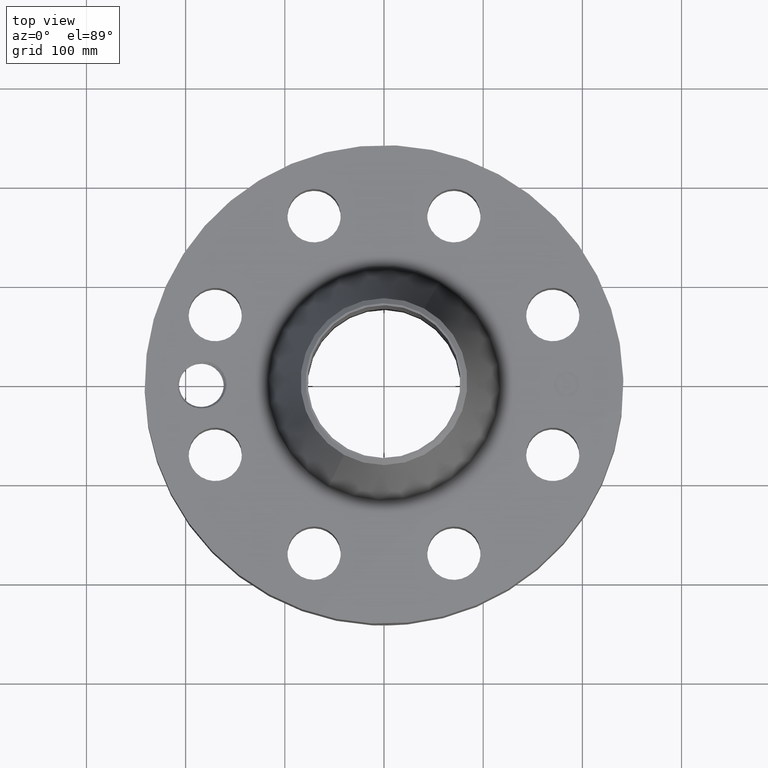
[diagram: clean part render]
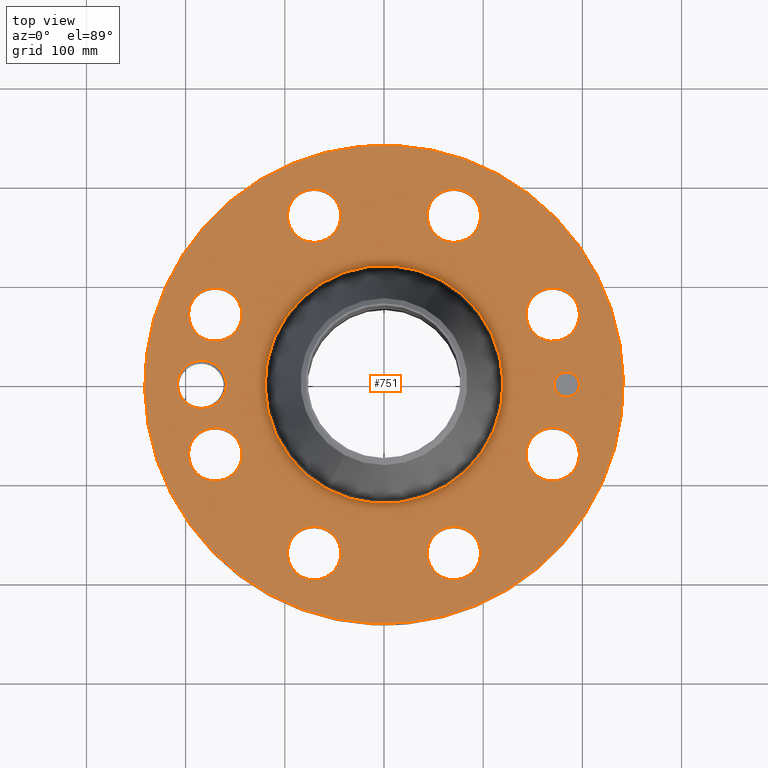
[diagram: same view with one face highlighted and labeled with its STEP entity id]
A machine part, top view. The second image highlights one B-rep face of the part: STEP entity #751.
In plain terms, the highlighted planar face has unit normal (0, 0, -1).
Its self-contained STEP definition (entity closure, byte-faithful):
#58=AXIS2_PLACEMENT_3D('Circle Axis2P3D',#56,#57,$) ;
#407=AXIS2_PLACEMENT_3D('Circle Axis2P3D',#405,#406,$) ;
#507=AXIS2_PLACEMENT_3D('Plane Axis2P3D',#504,#505,#506) ;
#555=AXIS2_PLACEMENT_3D('Circle Axis2P3D',#553,#554,$) ;
#562=AXIS2_PLACEMENT_3D('Circle Axis2P3D',#560,#561,$) ;
#573=AXIS2_PLACEMENT_3D('Circle Axis2P3D',#571,#572,$) ;
#582=AXIS2_PLACEMENT_3D('Circle Axis2P3D',#580,#581,$) ;
#591=AXIS2_PLACEMENT_3D('Circle Axis2P3D',#589,#590,$) ;
#600=AXIS2_PLACEMENT_3D('Circle Axis2P3D',#598,#599,$) ;
#609=AXIS2_PLACEMENT_3D('Circle Axis2P3D',#607,#608,$) ;
#618=AXIS2_PLACEMENT_3D('Circle Axis2P3D',#616,#617,$) ;
#627=AXIS2_PLACEMENT_3D('Circle Axis2P3D',#625,#626,$) ;
#636=AXIS2_PLACEMENT_3D('Circle Axis2P3D',#634,#635,$) ;
#645=AXIS2_PLACEMENT_3D('Circle Axis2P3D',#643,#644,$) ;
#654=AXIS2_PLACEMENT_3D('Circle Axis2P3D',#652,#653,$) ;
#663=AXIS2_PLACEMENT_3D('Circle Axis2P3D',#661,#662,$) ;
#672=AXIS2_PLACEMENT_3D('Circle Axis2P3D',#670,#671,$) ;
#681=AXIS2_PLACEMENT_3D('Circle Axis2P3D',#679,#680,$) ;
#690=AXIS2_PLACEMENT_3D('Circle Axis2P3D',#688,#689,$) ;
#699=AXIS2_PLACEMENT_3D('Circle Axis2P3D',#697,#698,$) ;
#708=AXIS2_PLACEMENT_3D('Circle Axis2P3D',#706,#707,$) ;
#717=AXIS2_PLACEMENT_3D('Circle Axis2P3D',#715,#716,$) ;
#726=AXIS2_PLACEMENT_3D('Circle Axis2P3D',#724,#725,$) ;
#735=AXIS2_PLACEMENT_3D('Circle Axis2P3D',#733,#734,$) ;
#744=AXIS2_PLACEMENT_3D('Circle Axis2P3D',#742,#743,$) ;
#53=CARTESIAN_POINT('Vertex',(-4.55454261676,-8.33703433799,4.50000000002)) ;
#56=CARTESIAN_POINT('Axis2P3D Location',(0.,0.,4.50000000002)) ;
#60=CARTESIAN_POINT('Vertex',(4.55454261676,8.33703433799,4.50000000002)) ;
#405=CARTESIAN_POINT('Axis2P3D Location',(0.,0.,4.50000000002)) ;
#504=CARTESIAN_POINT('Axis2P3D Location',(0.,9.50000000004,4.50000000002)) ;
#514=CARTESIAN_POINT('Control Point',(-6.25000000002,-2.23792987641E-015,4.50000000002)) ;
#515=CARTESIAN_POINT('Control Point',(-6.25273203406,0.0777574394302,4.50000000002)) ;
#516=CARTESIAN_POINT('Control Point',(-6.26302672252,0.155124005903,4.50000000002)) ;
#517=CARTESIAN_POINT('Control Point',(-6.28083461901,0.231107021127,4.50000000002)) ;
#518=CARTESIAN_POINT('Control Point',(-6.33515980377,0.390627784737,4.50000000002)) ;
#519=CARTESIAN_POINT('Control Point',(-6.42159299961,0.534881559197,4.50000000002)) ;
#520=CARTESIAN_POINT('Control Point',(-6.476776561,0.60672237749,4.50000000002)) ;
#521=CARTESIAN_POINT('Control Point',(-6.59341049568,0.726912170152,4.50000000002)) ;
#522=CARTESIAN_POINT('Control Point',(-6.73210128005,0.819211335379,4.50000000002)) ;
#523=CARTESIAN_POINT('Control Point',(-6.80001868272,0.855244144401,4.50000000002)) ;
#524=CARTESIAN_POINT('Control Point',(-6.89939566939,0.895881354785,4.50000000002)) ;
#525=CARTESIAN_POINT('Control Point',(-7.00276654889,0.922184082633,4.50000000002)) ;
#526=CARTESIAN_POINT('Control Point',(-7.03262242827,0.928521055063,4.50000000002)) ;
#527=CARTESIAN_POINT('Control Point',(-7.06267691117,0.93365312007,4.50000000002)) ;
#528=CARTESIAN_POINT('Control Point',(-7.09286397324,0.937573299317,4.50000000002)) ;
#529=CARTESIAN_POINT('Vertex',(-6.25000000002,-2.23792987641E-015,4.50000000002)) ;
#531=CARTESIAN_POINT('Vertex',(-7.09286397324,0.937573299317,4.50000000002)) ;
#535=CARTESIAN_POINT('Control Point',(-6.25000000003,-1.1189649382E-015,4.50000000002)) ;
#536=CARTESIAN_POINT('Control Point',(-6.25273251143,-0.0777710264072,4.50000000002)) ;
#537=CARTESIAN_POINT('Control Point',(-6.26303032016,-0.155151044022,4.50000000002)) ;
#538=CARTESIAN_POINT('Control Point',(-6.28083777546,-0.231132848361,4.50000000002)) ;
#539=CARTESIAN_POINT('Control Point',(-6.33516957918,-0.390677976219,4.50000000002)) ;
#540=CARTESIAN_POINT('Control Point',(-6.42157976375,-0.534880433275,4.50000000002)) ;
#541=CARTESIAN_POINT('Control Point',(-6.47675361307,-0.606694458226,4.50000000002)) ;
#542=CARTESIAN_POINT('Control Point',(-6.60234237612,-0.736111701279,4.50000000002)) ;
#543=CARTESIAN_POINT('Control Point',(-6.75344633878,-0.833176836617,4.50000000002)) ;
#544=CARTESIAN_POINT('Control Point',(-6.83416568945,-0.872657425154,4.50000000002)) ;
#545=CARTESIAN_POINT('Control Point',(-6.93561641303,-0.908372726474,4.50000000002)) ;
#546=CARTESIAN_POINT('Control Point',(-7.04014160971,-0.929488463158,4.50000000002)) ;
#547=CARTESIAN_POINT('Control Point',(-7.05778396953,-0.932622294244,4.50000000002)) ;
#548=CARTESIAN_POINT('Control Point',(-7.07548735492,-0.93533867326,4.50000000002)) ;
#549=CARTESIAN_POINT('Control Point',(-7.09323865063,-0.937636017782,4.50000000002)) ;
#550=CARTESIAN_POINT('Vertex',(-7.09323865063,-0.937636017782,4.50000000002)) ;
#553=CARTESIAN_POINT('Axis2P3D Location',(-7.25000000003,-1.1189649382E-015,4.50000000002)) ;
#557=CARTESIAN_POINT('Vertex',(-8.08427386249,0.455765888276,4.50000000002)) ;
#560=CARTESIAN_POINT('Axis2P3D Location',(-7.25000000003,-1.1189649382E-015,4.50000000002)) ;
#571=CARTESIAN_POINT('Axis2P3D Location',(6.69812661073,-2.77445488466,4.50000000002)) ;
#575=CARTESIAN_POINT('Vertex',(5.76788909513,-2.26626381374,4.50000000002)) ;
#577=CARTESIAN_POINT('Vertex',(7.62836412634,-3.28264595558,4.50000000002)) ;
#580=CARTESIAN_POINT('Axis2P3D Location',(6.69812661073,-2.77445488466,4.50000000002)) ;
#589=CARTESIAN_POINT('Axis2P3D Location',(0.,0.,4.50000000002)) ;
#593=CARTESIAN_POINT('Vertex',(-2.26384271751,-4.1439362983,4.50000000002)) ;
#595=CARTESIAN_POINT('Vertex',(2.26384271751,4.1439362983,4.50000000002)) ;
#598=CARTESIAN_POINT('Axis2P3D Location',(0.,0.,4.50000000002)) ;
#607=CARTESIAN_POINT('Axis2P3D Location',(2.77445488466,-6.69812661073,4.50000000002)) ;
#611=CARTESIAN_POINT('Vertex',(3.07288678767,-7.71524921852,4.50000000002)) ;
#613=CARTESIAN_POINT('Vertex',(2.47602298165,-5.68100400295,4.50000000002)) ;
#616=CARTESIAN_POINT('Axis2P3D Location',(2.77445488466,-6.69812661073,4.50000000002)) ;
#625=CARTESIAN_POINT('Axis2P3D Location',(-2.77445488466,-6.69812661073,4.50000000002)) ;
#629=CARTESIAN_POINT('Vertex',(-3.28264595558,-7.62836412634,4.50000000002)) ;
#631=CARTESIAN_POINT('Vertex',(-2.26626381374,-5.76788909513,4.50000000002)) ;
#634=CARTESIAN_POINT('Axis2P3D Location',(-2.77445488466,-6.69812661073,4.50000000002)) ;
#643=CARTESIAN_POINT('Axis2P3D Location',(-6.69812661073,-2.77445488466,4.50000000002)) ;
#647=CARTESIAN_POINT('Vertex',(-7.71524921852,-3.07288678767,4.50000000002)) ;
#649=CARTESIAN_POINT('Vertex',(-5.68100400295,-2.47602298165,4.50000000002)) ;
#652=CARTESIAN_POINT('Axis2P3D Location',(-6.69812661073,-2.77445488466,4.50000000002)) ;
#661=CARTESIAN_POINT('Axis2P3D Location',(-6.69812661073,2.77445488466,4.50000000002)) ;
#665=CARTESIAN_POINT('Vertex',(-7.62836412634,3.28264595558,4.50000000002)) ;
#667=CARTESIAN_POINT('Vertex',(-5.76788909513,2.26626381374,4.50000000002)) ;
#670=CARTESIAN_POINT('Axis2P3D Location',(-6.69812661073,2.77445488466,4.50000000002)) ;
#679=CARTESIAN_POINT('Axis2P3D Location',(-2.77445488466,6.69812661073,4.50000000002)) ;
#683=CARTESIAN_POINT('Vertex',(-3.07288678767,7.71524921852,4.50000000002)) ;
#685=CARTESIAN_POINT('Vertex',(-2.47602298165,5.68100400295,4.50000000002)) ;
#688=CARTESIAN_POINT('Axis2P3D Location',(-2.77445488466,6.69812661073,4.50000000002)) ;
#697=CARTESIAN_POINT('Axis2P3D Location',(2.77445488466,6.69812661073,4.50000000002)) ;
#701=CARTESIAN_POINT('Vertex',(3.28264595558,7.62836412634,4.50000000002)) ;
#703=CARTESIAN_POINT('Vertex',(2.26626381374,5.76788909513,4.50000000002)) ;
#706=CARTESIAN_POINT('Axis2P3D Location',(2.77445488466,6.69812661073,4.50000000002)) ;
#715=CARTESIAN_POINT('Axis2P3D Location',(6.69812661073,2.77445488466,4.50000000002)) ;
#719=CARTESIAN_POINT('Vertex',(7.71524921852,3.07288678767,4.50000000002)) ;
#721=CARTESIAN_POINT('Vertex',(5.68100400295,2.47602298165,4.50000000002)) ;
#724=CARTESIAN_POINT('Axis2P3D Location',(6.69812661073,2.77445488466,4.50000000002)) ;
#733=CARTESIAN_POINT('Axis2P3D Location',(7.25000000003,-2.79741234551E-014,4.50000000002)) ;
#737=CARTESIAN_POINT('Vertex',(7.25000000003,0.499999995002,4.50000000002)) ;
#739=CARTESIAN_POINT('Vertex',(7.25000000003,-0.499999995002,4.50000000002)) ;
#742=CARTESIAN_POINT('Axis2P3D Location',(7.25000000003,-2.68551585169E-014,4.50000000002)) ;
#57=DIRECTION('Axis2P3D Direction',(0.,0.,-0.0393700787402)) ;
#406=DIRECTION('Axis2P3D Direction',(0.,0.,-0.0393700787402)) ;
#505=DIRECTION('Axis2P3D Direction',(0.,0.,-0.0393700787402)) ;
#506=DIRECTION('Axis2P3D XDirection',(0.0393700787402,0.,0.)) ;
#554=DIRECTION('Axis2P3D Direction',(0.,0.,-0.0393700787402)) ;
#561=DIRECTION('Axis2P3D Direction',(0.,0.,-0.0393700787402)) ;
#572=DIRECTION('Axis2P3D Direction',(0.,0.,-0.0393700787402)) ;
#581=DIRECTION('Axis2P3D Direction',(0.,0.,-0.0393700787402)) ;
#590=DIRECTION('Axis2P3D Direction',(0.,0.,-0.0393700787402)) ;
#599=DIRECTION('Axis2P3D Direction',(0.,0.,-0.0393700787402)) ;
#608=DIRECTION('Axis2P3D Direction',(0.,0.,-0.0393700787402)) ;
#617=DIRECTION('Axis2P3D Direction',(0.,0.,-0.0393700787402)) ;
#626=DIRECTION('Axis2P3D Direction',(0.,0.,-0.0393700787402)) ;
#635=DIRECTION('Axis2P3D Direction',(0.,0.,-0.0393700787402)) ;
#644=DIRECTION('Axis2P3D Direction',(0.,0.,-0.0393700787402)) ;
#653=DIRECTION('Axis2P3D Direction',(0.,0.,-0.0393700787402)) ;
#662=DIRECTION('Axis2P3D Direction',(0.,0.,-0.0393700787402)) ;
#671=DIRECTION('Axis2P3D Direction',(0.,0.,-0.0393700787402)) ;
#680=DIRECTION('Axis2P3D Direction',(0.,0.,-0.0393700787402)) ;
#689=DIRECTION('Axis2P3D Direction',(0.,0.,-0.0393700787402)) ;
#698=DIRECTION('Axis2P3D Direction',(0.,0.,-0.0393700787402)) ;
#707=DIRECTION('Axis2P3D Direction',(0.,0.,-0.0393700787402)) ;
#716=DIRECTION('Axis2P3D Direction',(0.,0.,-0.0393700787402)) ;
#725=DIRECTION('Axis2P3D Direction',(0.,0.,-0.0393700787402)) ;
#734=DIRECTION('Axis2P3D Direction',(0.,0.,-0.0393700787402)) ;
#743=DIRECTION('Axis2P3D Direction',(0.,0.,-0.0393700787402)) ;
#510=ORIENTED_EDGE('',*,*,#409,.F.) ;
#511=ORIENTED_EDGE('',*,*,#62,.F.) ;
#566=ORIENTED_EDGE('',*,*,#533,.F.) ;
#567=ORIENTED_EDGE('',*,*,#552,.T.) ;
#568=ORIENTED_EDGE('',*,*,#559,.T.) ;
#569=ORIENTED_EDGE('',*,*,#564,.T.) ;
#586=ORIENTED_EDGE('',*,*,#579,.T.) ;
#587=ORIENTED_EDGE('',*,*,#584,.T.) ;
#604=ORIENTED_EDGE('',*,*,#597,.T.) ;
#605=ORIENTED_EDGE('',*,*,#602,.T.) ;
#622=ORIENTED_EDGE('',*,*,#615,.T.) ;
#623=ORIENTED_EDGE('',*,*,#620,.T.) ;
#640=ORIENTED_EDGE('',*,*,#633,.T.) ;
#641=ORIENTED_EDGE('',*,*,#638,.T.) ;
#658=ORIENTED_EDGE('',*,*,#651,.T.) ;
#659=ORIENTED_EDGE('',*,*,#656,.T.) ;
#676=ORIENTED_EDGE('',*,*,#669,.T.) ;
#677=ORIENTED_EDGE('',*,*,#674,.T.) ;
#694=ORIENTED_EDGE('',*,*,#687,.T.) ;
#695=ORIENTED_EDGE('',*,*,#692,.T.) ;
#712=ORIENTED_EDGE('',*,*,#705,.T.) ;
#713=ORIENTED_EDGE('',*,*,#710,.T.) ;
#730=ORIENTED_EDGE('',*,*,#723,.T.) ;
#731=ORIENTED_EDGE('',*,*,#728,.T.) ;
#748=ORIENTED_EDGE('',*,*,#741,.T.) ;
#749=ORIENTED_EDGE('',*,*,#746,.T.) ;
#570=FACE_BOUND('',#565,.T.) ;
#588=FACE_BOUND('',#585,.T.) ;
#606=FACE_BOUND('',#603,.T.) ;
#624=FACE_BOUND('',#621,.T.) ;
#642=FACE_BOUND('',#639,.T.) ;
#660=FACE_BOUND('',#657,.T.) ;
#678=FACE_BOUND('',#675,.T.) ;
#696=FACE_BOUND('',#693,.T.) ;
#714=FACE_BOUND('',#711,.T.) ;
#732=FACE_BOUND('',#729,.T.) ;
#750=FACE_BOUND('',#747,.T.) ;
#751=ADVANCED_FACE('PartBody',(#512,#570,#588,#606,#624,#642,#660,#678,#696,#714,#732,#750),#508,.F.) ;
#513=B_SPLINE_CURVE_WITH_KNOTS('',5,(#514,#515,#516,#517,#518,#519,#520,#521,#522,#523,#524,#525,#526,#527,#528),.UNSPECIFIED.,.F.,.U.,(6,3,3,3,6),(0.,13.6058694024,29.4810699189,43.0827589843,48.5382637982),.UNSPECIFIED.) ;
#534=B_SPLINE_CURVE_WITH_KNOTS('',5,(#535,#536,#537,#538,#539,#540,#541,#542,#543,#544,#545,#546,#547,#548,#549),.UNSPECIFIED.,.F.,.U.,(6,3,3,3,6),(0.,13.6082468295,29.4973419394,45.392854946,48.6043058257),.UNSPECIFIED.) ;
#59=CIRCLE('generated circle',#58,9.50000000004) ;
#408=CIRCLE('generated circle',#407,9.50000000004) ;
#556=CIRCLE('generated circle',#555,0.950650000004) ;
#563=CIRCLE('generated circle',#562,0.950650000004) ;
#574=CIRCLE('generated circle',#573,1.06) ;
#583=CIRCLE('generated circle',#582,1.06) ;
#592=CIRCLE('generated circle',#591,4.72199024713) ;
#601=CIRCLE('generated circle',#600,4.72199024713) ;
#610=CIRCLE('generated circle',#609,1.06) ;
#619=CIRCLE('generated circle',#618,1.06) ;
#628=CIRCLE('generated circle',#627,1.06) ;
#637=CIRCLE('generated circle',#636,1.06) ;
#646=CIRCLE('generated circle',#645,1.06) ;
#655=CIRCLE('generated circle',#654,1.06) ;
#664=CIRCLE('generated circle',#663,1.06) ;
#673=CIRCLE('generated circle',#672,1.06) ;
#682=CIRCLE('generated circle',#681,1.06) ;
#691=CIRCLE('generated circle',#690,1.06) ;
#700=CIRCLE('generated circle',#699,1.06) ;
#709=CIRCLE('generated circle',#708,1.06) ;
#718=CIRCLE('generated circle',#717,1.06) ;
#727=CIRCLE('generated circle',#726,1.06) ;
#736=CIRCLE('generated circle',#735,0.499999995002) ;
#745=CIRCLE('generated circle',#744,0.499999995002) ;
#62=EDGE_CURVE('',#54,#61,#59,.T.) ;
#409=EDGE_CURVE('',#61,#54,#408,.T.) ;
#533=EDGE_CURVE('',#530,#532,#513,.T.) ;
#552=EDGE_CURVE('',#530,#551,#534,.T.) ;
#559=EDGE_CURVE('',#551,#558,#556,.T.) ;
#564=EDGE_CURVE('',#558,#532,#563,.T.) ;
#579=EDGE_CURVE('',#576,#578,#574,.T.) ;
#584=EDGE_CURVE('',#578,#576,#583,.T.) ;
#597=EDGE_CURVE('',#594,#596,#592,.T.) ;
#602=EDGE_CURVE('',#596,#594,#601,.T.) ;
#615=EDGE_CURVE('',#612,#614,#610,.T.) ;
#620=EDGE_CURVE('',#614,#612,#619,.T.) ;
#633=EDGE_CURVE('',#630,#632,#628,.T.) ;
#638=EDGE_CURVE('',#632,#630,#637,.T.) ;
#651=EDGE_CURVE('',#648,#650,#646,.T.) ;
#656=EDGE_CURVE('',#650,#648,#655,.T.) ;
#669=EDGE_CURVE('',#666,#668,#664,.T.) ;
#674=EDGE_CURVE('',#668,#666,#673,.T.) ;
#687=EDGE_CURVE('',#684,#686,#682,.T.) ;
#692=EDGE_CURVE('',#686,#684,#691,.T.) ;
#705=EDGE_CURVE('',#702,#704,#700,.T.) ;
#710=EDGE_CURVE('',#704,#702,#709,.T.) ;
#723=EDGE_CURVE('',#720,#722,#718,.T.) ;
#728=EDGE_CURVE('',#722,#720,#727,.T.) ;
#741=EDGE_CURVE('',#738,#740,#736,.T.) ;
#746=EDGE_CURVE('',#740,#738,#745,.T.) ;
#509=EDGE_LOOP('',(#510,#511)) ;
#565=EDGE_LOOP('',(#566,#567,#568,#569)) ;
#585=EDGE_LOOP('',(#586,#587)) ;
#603=EDGE_LOOP('',(#604,#605)) ;
#621=EDGE_LOOP('',(#622,#623)) ;
#639=EDGE_LOOP('',(#640,#641)) ;
#657=EDGE_LOOP('',(#658,#659)) ;
#675=EDGE_LOOP('',(#676,#677)) ;
#693=EDGE_LOOP('',(#694,#695)) ;
#711=EDGE_LOOP('',(#712,#713)) ;
#729=EDGE_LOOP('',(#730,#731)) ;
#747=EDGE_LOOP('',(#748,#749)) ;
#512=FACE_OUTER_BOUND('',#509,.T.) ;
#508=PLANE('',#507) ;
#54=VERTEX_POINT('',#53) ;
#61=VERTEX_POINT('',#60) ;
#530=VERTEX_POINT('',#529) ;
#532=VERTEX_POINT('',#531) ;
#551=VERTEX_POINT('',#550) ;
#558=VERTEX_POINT('',#557) ;
#576=VERTEX_POINT('',#575) ;
#578=VERTEX_POINT('',#577) ;
#594=VERTEX_POINT('',#593) ;
#596=VERTEX_POINT('',#595) ;
#612=VERTEX_POINT('',#611) ;
#614=VERTEX_POINT('',#613) ;
#630=VERTEX_POINT('',#629) ;
#632=VERTEX_POINT('',#631) ;
#648=VERTEX_POINT('',#647) ;
#650=VERTEX_POINT('',#649) ;
#666=VERTEX_POINT('',#665) ;
#668=VERTEX_POINT('',#667) ;
#684=VERTEX_POINT('',#683) ;
#686=VERTEX_POINT('',#685) ;
#702=VERTEX_POINT('',#701) ;
#704=VERTEX_POINT('',#703) ;
#720=VERTEX_POINT('',#719) ;
#722=VERTEX_POINT('',#721) ;
#738=VERTEX_POINT('',#737) ;
#740=VERTEX_POINT('',#739) ;